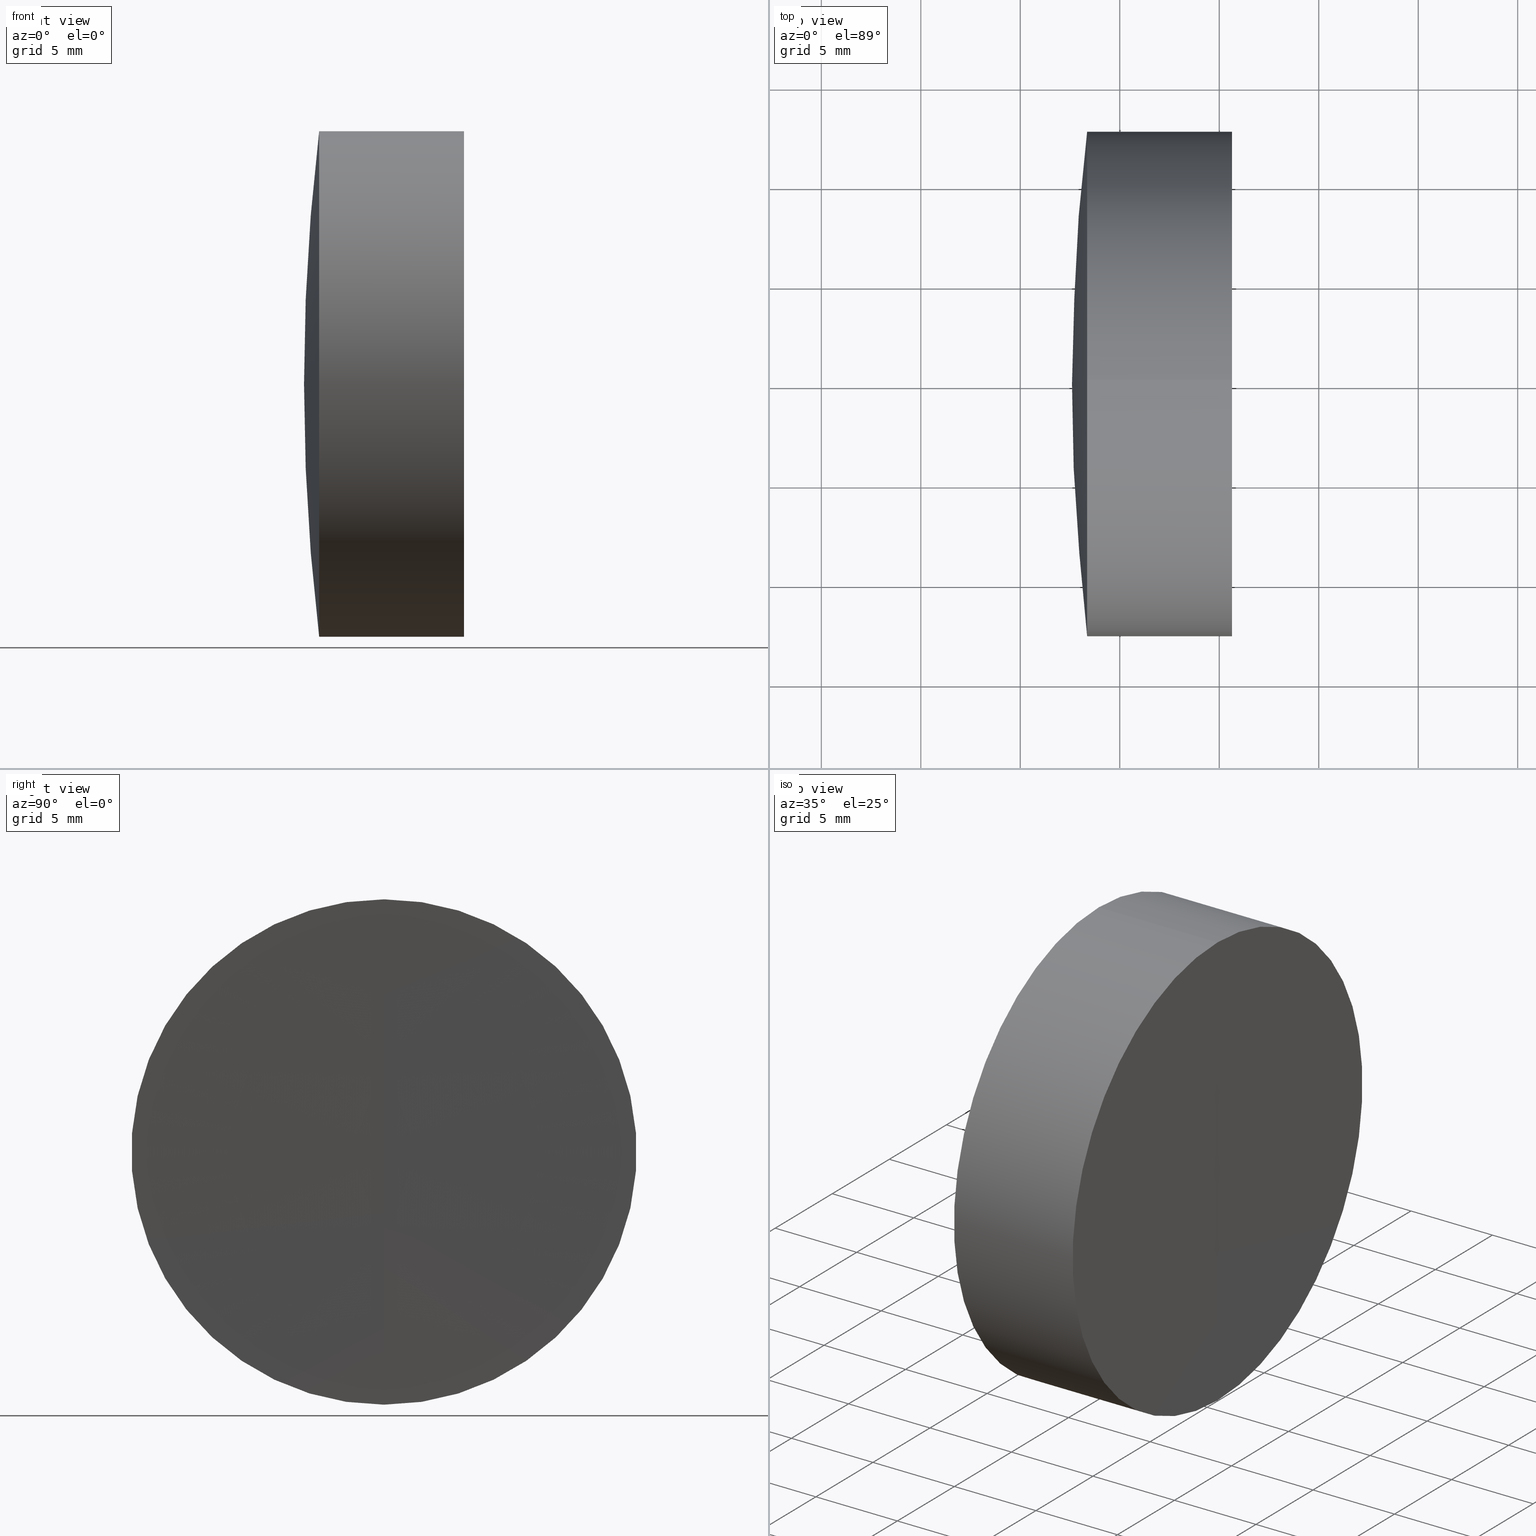
[diagram: canonical four-view strip — front | top / right | iso, engineering-drawing reading convention]
A machine part, canonical four-view strip (front | top / right | iso — engineering-drawing reading convention). The complete STEP part file that produces these views, byte-faithful:
ISO-10303-21;
HEADER;
FILE_DESCRIPTION (( 'STEP AP214' ),
    '1' );
FILE_NAME ('145125.STEP',
    '2019-06-03T06:31:22',
    ( 'user' ),
    ( '΢���й�' ),
    'SwSTEP 2.0',
    'SolidWorks 2016',
    '' );
FILE_SCHEMA (( 'AUTOMOTIVE_DESIGN' ));
ENDSEC;

DATA;
#1 = CARTESIAN_POINT ( 'NONE',  ( 345.7616526594428000, 0.0000000000000000000, 0.0000000000000000000 ) ) ;
#2 = CLOSED_SHELL ( 'NONE', ( #42, #245, #332, #142, #67, #196 ) ) ;
#3 = PRODUCT ( '145125', '145125', '', ( #164 ) ) ;
#4 = CARTESIAN_POINT ( 'NONE',  ( 449.0001259381126600, 0.0000000000000000000, 7.129305772232010000E-015 ) ) ;
#5 = CARTESIAN_POINT ( 'NONE',  ( 345.7616526594428000, 0.0000000000000000000, 12.70000000000007900 ) ) ;
#6 = MECHANICAL_DESIGN_GEOMETRIC_PRESENTATION_REPRESENTATION (  '', ( #310 ), #24 ) ;
#7 = DIRECTION ( 'NONE',  ( 0.0000000000000000000, 0.0000000000000000000, 1.000000000000000000 ) ) ;
#8 = DIRECTION ( 'NONE',  ( 1.000000000000000000, 0.0000000000000000000, 0.0000000000000000000 ) ) ;
#9 = DIRECTION ( 'NONE',  ( -1.000000000000000000, -0.0000000000000000000, -0.0000000000000000000 ) ) ;
#10 = APPLICATION_CONTEXT ( 'automotive_design' ) ;
#11 = CIRCLE ( 'NONE', #110, 96.60000000000003700 ) ;
#12 = CIRCLE ( 'NONE', #71, 96.60000000000005100 ) ;
#13 = FACE_OUTER_BOUND ( 'NONE', #242, .T. ) ;
#14 = CARTESIAN_POINT ( 'NONE',  ( 343.3607866747492500, 0.0000000000000000000, -12.69999999999999200 ) ) ;
#15 = ADVANCED_FACE ( 'NONE', ( #146 ), #250, .F. ) ;
#16 = FACE_OUTER_BOUND ( 'NONE', #181, .T. ) ;
#17 = ORIENTED_EDGE ( 'NONE', *, *, #216, .T. ) ;
#18 = AXIS2_PLACEMENT_3D ( 'NONE', #232, #346, #56 ) ;
#19 = ORIENTED_EDGE ( 'NONE', *, *, #273, .T. ) ;
#20 = AXIS2_PLACEMENT_3D ( 'NONE', #238, #35, #7 ) ;
#21 = CYLINDRICAL_SURFACE ( 'NONE', #147, 12.70000000000001700 ) ;
#22 = CIRCLE ( 'NONE', #224, 12.70000000000000600 ) ;
#23 = CIRCLE ( 'NONE', #318, 1999.999999999999100 ) ;
#24 =( GEOMETRIC_REPRESENTATION_CONTEXT ( 3 ) GLOBAL_UNCERTAINTY_ASSIGNED_CONTEXT ( ( #301 ) ) GLOBAL_UNIT_ASSIGNED_CONTEXT ( ( #260, #82, #234 ) ) REPRESENTATION_CONTEXT ( 'NONE', 'WORKASPACE' ) );
#25 = DIRECTION ( 'NONE',  ( -0.0000000000000000000, -1.000000000000000000, -0.0000000000000000000 ) ) ;
#26 = CARTESIAN_POINT ( 'NONE',  ( 250.0001259381127700, 0.0000000000000000000, 6.763720156497999700E-015 ) ) ;
#27 = FACE_OUTER_BOUND ( 'NONE', #33, .T. ) ;
#28 = VERTEX_POINT ( 'NONE', #240 ) ;
#29 = DIRECTION ( 'NONE',  ( 0.0000000000000000000, 0.0000000000000000000, 1.000000000000000000 ) ) ;
#30 =( NAMED_UNIT ( * ) SI_UNIT ( $, .STERADIAN. ) SOLID_ANGLE_UNIT ( ) );
#31 = DIRECTION ( 'NONE',  ( 0.0000000000000000000, 1.000000000000000000, 0.0000000000000000000 ) ) ;
#32 = AXIS2_PLACEMENT_3D ( 'NONE', #97, #254, #79 ) ;
#33 = EDGE_LOOP ( 'NONE', ( #266, #141, #127, #136 ) ) ;
#34 = DIRECTION ( 'NONE',  ( -1.000000000000000000, -0.0000000000000000000, -0.0000000000000000000 ) ) ;
#35 = DIRECTION ( 'NONE',  ( 0.0000000000000000000, 1.000000000000000000, 0.0000000000000000000 ) ) ;
#36 = CARTESIAN_POINT ( 'NONE',  ( 0.0000000000000000000, 0.0000000000000000000, 0.0000000000000000000 ) ) ;
#37 = DIRECTION ( 'NONE',  ( 0.0000000000000000000, 0.0000000000000000000, 1.000000000000000000 ) ) ;
#38 = AXIS2_PLACEMENT_3D ( 'NONE', #113, #217, #165 ) ;
#39 = DIRECTION ( 'NONE',  ( -1.000000000000000000, -0.0000000000000000000, -0.0000000000000000000 ) ) ;
#40 =( GEOMETRIC_REPRESENTATION_CONTEXT ( 3 ) GLOBAL_UNCERTAINTY_ASSIGNED_CONTEXT ( ( #261 ) ) GLOBAL_UNIT_ASSIGNED_CONTEXT ( ( #212, #59, #30 ) ) REPRESENTATION_CONTEXT ( 'NONE', 'WORKASPACE' ) );
#41 = CARTESIAN_POINT ( 'NONE',  ( 345.7616526594428000, 0.0000000000000000000, 12.70000000000000600 ) ) ;
#42 = ADVANCED_FACE ( 'NONE', ( #208 ), #58, .T. ) ;
#43 = CIRCLE ( 'NONE', #188, 12.70000000000003100 ) ;
#44 = COLOUR_RGB ( '',1.000000000000000000, 1.000000000000000000, 1.000000000000000000 ) ;
#45 = AXIS2_PLACEMENT_3D ( 'NONE', #1, #158, #317 ) ;
#46 = SPHERICAL_SURFACE ( 'NONE', #77, 96.60000000000003700 ) ;
#47 = COLOUR_RGB ( '',1.000000000000000000, 1.000000000000000000, 1.000000000000000000 ) ;
#48 = ORIENTED_EDGE ( 'NONE', *, *, #248, .T. ) ;
#49 = STYLED_ITEM ( 'NONE', ( #259 ), #300 ) ;
#50 = SURFACE_STYLE_USAGE ( .BOTH. , #329 ) ;
#51 = CARTESIAN_POINT ( 'NONE',  ( 124.5233095260452400, 1.555301434917139200E-015, -12.70000000000000600 ) ) ;
#52 = CARTESIAN_POINT ( 'NONE',  ( 342.6001259381126800, 0.0000000000000000000, 6.141848007680913600E-016 ) ) ;
#53 = DIRECTION ( 'NONE',  ( 0.0000000000000000000, -1.000000000000000000, 0.0000000000000000000 ) ) ;
#54 = VERTEX_POINT ( 'NONE', #111 ) ;
#55 = AXIS2_PLACEMENT_3D ( 'NONE', #85, #324, #137 ) ;
#56 = DIRECTION ( 'NONE',  ( 0.0000000000000000000, 0.0000000000000000000, 1.000000000000000000 ) ) ;
#57 = CARTESIAN_POINT ( 'NONE',  ( 350.6404488445973600, 0.0000000000000000000, 0.0000000000000000000 ) ) ;
#58 = SPHERICAL_SURFACE ( 'NONE', #55, 96.60000000000003700 ) ;
#59 =( NAMED_UNIT ( * ) PLANE_ANGLE_UNIT ( ) SI_UNIT ( $, .RADIAN. ) );
#60 = CYLINDRICAL_SURFACE ( 'NONE', #86, 12.70000000000000600 ) ;
#61 = AXIS2_PLACEMENT_3D ( 'NONE', #57, #209, #29 ) ;
#62 = CARTESIAN_POINT ( 'NONE',  ( 250.0001259381127700, 0.0000000000000000000, 6.763720156497999700E-015 ) ) ;
#63 = ORIENTED_EDGE ( 'NONE', *, *, #292, .F. ) ;
#64 =( NAMED_UNIT ( * ) SI_UNIT ( $, .STERADIAN. ) SOLID_ANGLE_UNIT ( ) );
#65 = FILL_AREA_STYLE_COLOUR ( '', #47 ) ;
#66 = CARTESIAN_POINT ( 'NONE',  ( 124.5233095260452400, 0.0000000000000000000, 12.70000000000000600 ) ) ;
#67 = ADVANCED_FACE ( 'NONE', ( #13 ), #60, .T. ) ;
#68 = FACE_OUTER_BOUND ( 'NONE', #102, .T. ) ;
#69 = ORIENTED_EDGE ( 'NONE', *, *, #267, .F. ) ;
#70 = FACE_OUTER_BOUND ( 'NONE', #226, .T. ) ;
#71 = AXIS2_PLACEMENT_3D ( 'NONE', #311, #124, #283 ) ;
#72 = AXIS2_PLACEMENT_3D ( 'NONE', #321, #135, #294 ) ;
#73 = STYLED_ITEM ( 'NONE', ( #289 ), #203 ) ;
#74 = VERTEX_POINT ( 'NONE', #215 ) ;
#75 = PRESENTATION_STYLE_ASSIGNMENT (( #105 ) ) ;
#76 = ORIENTED_EDGE ( 'NONE', *, *, #326, .F. ) ;
#77 = AXIS2_PLACEMENT_3D ( 'NONE', #186, #31, #132 ) ;
#78 = CARTESIAN_POINT ( 'NONE',  ( 449.0001259381126600, 0.0000000000000000000, 7.129305772232010000E-015 ) ) ;
#79 = DIRECTION ( 'NONE',  ( 0.0000000000000000000, 0.0000000000000000000, 1.000000000000000000 ) ) ;
#80 = DIRECTION ( 'NONE',  ( -0.0000000000000000000, 1.000000000000000000, 1.224646799147353200E-016 ) ) ;
#81 = ORIENTED_EDGE ( 'NONE', *, *, #308, .T. ) ;
#82 =( NAMED_UNIT ( * ) PLANE_ANGLE_UNIT ( ) SI_UNIT ( $, .RADIAN. ) );
#83 = UNCERTAINTY_MEASURE_WITH_UNIT (LENGTH_MEASURE( 1.000000000000000100E-005 ), #253, 'distance_accuracy_value', 'NONE');
#84 = AXIS2_PLACEMENT_3D ( 'NONE', #126, #128, #284 ) ;
#85 = CARTESIAN_POINT ( 'NONE',  ( 250.0001259381127700, 0.0000000000000000000, 6.763720156497999700E-015 ) ) ;
#86 = AXIS2_PLACEMENT_3D ( 'NONE', #265, #9, #37 ) ;
#87 = DIRECTION ( 'NONE',  ( -1.000000000000000000, -0.0000000000000000000, -0.0000000000000000000 ) ) ;
#88 = CIRCLE ( 'NONE', #125, 12.70000000000000300 ) ;
#89 = PRESENTATION_LAYER_ASSIGNMENT (  '', '', ( #73 ) ) ;
#90 =( NAMED_UNIT ( * ) PLANE_ANGLE_UNIT ( ) SI_UNIT ( $, .RADIAN. ) );
#91 = ADVANCED_FACE ( 'NONE', ( #304 ), #100, .F. ) ;
#92 = PRODUCT_DEFINITION_CONTEXT ( 'detailed design', #323, 'design' ) ;
#93 = AXIS2_PLACEMENT_3D ( 'NONE', #156, #316, #130 ) ;
#94 = ORIENTED_EDGE ( 'NONE', *, *, #249, .T. ) ;
#95 = PRESENTATION_LAYER_ASSIGNMENT (  '', '', ( #49 ) ) ;
#96 = DIRECTION ( 'NONE',  ( -1.000000000000000000, -0.0000000000000000000, -0.0000000000000000000 ) ) ;
#97 = CARTESIAN_POINT ( 'NONE',  ( 345.7616526594428000, 0.0000000000000000000, 0.0000000000000000000 ) ) ;
#98 = CARTESIAN_POINT ( 'NONE',  ( 345.7616526594428000, 1.555301434917148100E-015, -12.70000000000007200 ) ) ;
#99 = CYLINDRICAL_SURFACE ( 'NONE', #18, 12.70000000000000600 ) ;
#100 = SPHERICAL_SURFACE ( 'NONE', #20, 96.60000000000005100 ) ;
#101 = AXIS2_PLACEMENT_3D ( 'NONE', #62, #190, #109 ) ;
#102 = EDGE_LOOP ( 'NONE', ( #63, #325, #17, #342 ) ) ;
#103 = DIRECTION ( 'NONE',  ( 0.0000000000000000000, 0.0000000000000000000, 1.000000000000000000 ) ) ;
#104 = MECHANICAL_DESIGN_GEOMETRIC_PRESENTATION_REPRESENTATION (  '', ( #73 ), #120 ) ;
#105 = SURFACE_STYLE_USAGE ( .BOTH. , #293 ) ;
#106 = EDGE_LOOP ( 'NONE', ( #327, #157, #173, #76 ) ) ;
#107 = DIRECTION ( 'NONE',  ( -0.0000000000000000000, -1.000000000000000000, -0.0000000000000000000 ) ) ;
#108 = SPHERICAL_SURFACE ( 'NONE', #295, 1999.999999999999100 ) ;
#109 = DIRECTION ( 'NONE',  ( 0.0000000000000000000, 0.0000000000000000000, 1.000000000000000000 ) ) ;
#110 = AXIS2_PLACEMENT_3D ( 'NONE', #256, #80, #231 ) ;
#111 = CARTESIAN_POINT ( 'NONE',  ( 346.6001259381128500, 0.0000000000000000000, 1.267876419637971800E-014 ) ) ;
#112 = VERTEX_POINT ( 'NONE', #322 ) ;
#113 = CARTESIAN_POINT ( 'NONE',  ( 2350.600125938112300, 0.0000000000000000000, 0.0000000000000000000 ) ) ;
#114 = ORIENTED_EDGE ( 'NONE', *, *, #185, .T. ) ;
#115 = FILL_AREA_STYLE ('',( #65 ) ) ;
#116 = ADVANCED_FACE ( 'NONE', ( #16 ), #262, .F. ) ;
#117 = ORIENTED_EDGE ( 'NONE', *, *, #326, .T. ) ;
#118 = MECHANICAL_DESIGN_GEOMETRIC_PRESENTATION_REPRESENTATION (  '', ( #49 ), #134 ) ;
#119 = ORIENTED_EDGE ( 'NONE', *, *, #185, .F. ) ;
#120 =( GEOMETRIC_REPRESENTATION_CONTEXT ( 3 ) GLOBAL_UNCERTAINTY_ASSIGNED_CONTEXT ( ( #83 ) ) GLOBAL_UNIT_ASSIGNED_CONTEXT ( ( #253, #239, #64 ) ) REPRESENTATION_CONTEXT ( 'NONE', 'WORKASPACE' ) );
#121 = LINE ( 'NONE', #51, #148 ) ;
#122 = ORIENTED_EDGE ( 'NONE', *, *, #172, .T. ) ;
#123 = APPLICATION_PROTOCOL_DEFINITION ( 'draft international standard', 'automotive_design', 1998, #10 ) ;
#124 = DIRECTION ( 'NONE',  ( -0.0000000000000000000, 1.000000000000000000, 1.224646799147353200E-016 ) ) ;
#125 = AXIS2_PLACEMENT_3D ( 'NONE', #155, #315, #129 ) ;
#126 = CARTESIAN_POINT ( 'NONE',  ( -0.5519199926577972300, 0.0000000000000000000, 0.0000000000000000000 ) ) ;
#127 = ORIENTED_EDGE ( 'NONE', *, *, #333, .F. ) ;
#128 = DIRECTION ( 'NONE',  ( -1.000000000000000000, -0.0000000000000000000, -0.0000000000000000000 ) ) ;
#129 = DIRECTION ( 'NONE',  ( 0.0000000000000000000, 0.0000000000000000000, 1.000000000000000000 ) ) ;
#130 = DIRECTION ( 'NONE',  ( 0.0000000000000000000, 1.224646799147353200E-016, -1.000000000000000000 ) ) ;
#131 = VECTOR ( 'NONE', #184, 1000.000000000000000 ) ;
#132 = DIRECTION ( 'NONE',  ( 0.0000000000000000000, 0.0000000000000000000, 1.000000000000000000 ) ) ;
#133 = FILL_AREA_STYLE ('',( #213 ) ) ;
#134 =( GEOMETRIC_REPRESENTATION_CONTEXT ( 3 ) GLOBAL_UNCERTAINTY_ASSIGNED_CONTEXT ( ( #144 ) ) GLOBAL_UNIT_ASSIGNED_CONTEXT ( ( #272, #90, #244 ) ) REPRESENTATION_CONTEXT ( 'NONE', 'WORKASPACE' ) );
#135 = DIRECTION ( 'NONE',  ( 0.0000000000000000000, -1.000000000000000000, -1.224646799147353200E-016 ) ) ;
#136 = ORIENTED_EDGE ( 'NONE', *, *, #216, .F. ) ;
#137 = DIRECTION ( 'NONE',  ( 0.0000000000000000000, 0.0000000000000000000, 1.000000000000000000 ) ) ;
#138 = DIRECTION ( 'NONE',  ( -1.000000000000000000, -0.0000000000000000000, -0.0000000000000000000 ) ) ;
#139 = SURFACE_SIDE_STYLE ('',( #225 ) ) ;
#140 = CIRCLE ( 'NONE', #339, 96.60000000000003700 ) ;
#141 = ORIENTED_EDGE ( 'NONE', *, *, #292, .T. ) ;
#142 = ADVANCED_FACE ( 'NONE', ( #70 ), #281, .T. ) ;
#143 = EDGE_LOOP ( 'NONE', ( #271, #309, #282 ) ) ;
#144 = UNCERTAINTY_MEASURE_WITH_UNIT (LENGTH_MEASURE( 1.000000000000000100E-005 ), #272, 'distance_accuracy_value', 'NONE');
#145 = FACE_OUTER_BOUND ( 'NONE', #152, .T. ) ;
#146 = FACE_OUTER_BOUND ( 'NONE', #255, .T. ) ;
#147 = AXIS2_PLACEMENT_3D ( 'NONE', #290, #288, #103 ) ;
#148 = VECTOR ( 'NONE', #96, 1000.000000000000000 ) ;
#149 = EDGE_CURVE ( 'NONE', #74, #347, #197, .T. ) ;
#150 = VERTEX_POINT ( 'NONE', #5 ) ;
#151 = AXIS2_PLACEMENT_3D ( 'NONE', #170, #331, #243 ) ;
#152 = EDGE_LOOP ( 'NONE', ( #222, #199, #200 ) ) ;
#153 = CARTESIAN_POINT ( 'NONE',  ( 345.7616526594428000, 1.555301434917139200E-015, -12.70000000000000600 ) ) ;
#154 = DIRECTION ( 'NONE',  ( 0.0000000000000000000, 1.000000000000000000, -0.0000000000000000000 ) ) ;
#155 = CARTESIAN_POINT ( 'NONE',  ( 350.6404488445973600, 0.0000000000000000000, 0.0000000000000000000 ) ) ;
#156 = CARTESIAN_POINT ( 'NONE',  ( 2350.600125938112300, 0.0000000000000000000, 0.0000000000000000000 ) ) ;
#157 = ORIENTED_EDGE ( 'NONE', *, *, #285, .T. ) ;
#158 = DIRECTION ( 'NONE',  ( -1.000000000000000000, -0.0000000000000000000, -0.0000000000000000000 ) ) ;
#159 = DIRECTION ( 'NONE',  ( 0.0000000000000000000, 1.000000000000000000, -0.0000000000000000000 ) ) ;
#160 = ORIENTED_EDGE ( 'NONE', *, *, #198, .F. ) ;
#161 = CARTESIAN_POINT ( 'NONE',  ( 2350.600125938112300, 0.0000000000000000000, 0.0000000000000000000 ) ) ;
#162 = DIRECTION ( 'NONE',  ( 0.0000000000000000000, 0.0000000000000000000, -1.000000000000000000 ) ) ;
#163 = AXIS2_PLACEMENT_3D ( 'NONE', #26, #183, #345 ) ;
#164 = PRODUCT_CONTEXT ( 'NONE', #10, 'mechanical' ) ;
#165 = DIRECTION ( 'NONE',  ( 0.0000000000000000000, 0.0000000000000000000, -1.000000000000000000 ) ) ;
#166 = FILL_AREA_STYLE_COLOUR ( '', #296 ) ;
#167 = EDGE_LOOP ( 'NONE', ( #211, #48, #119 ) ) ;
#168 = FILL_AREA_STYLE ('',( #166 ) ) ;
#169 = DIRECTION ( 'NONE',  ( 0.0000000000000000000, 0.0000000000000000000, 1.000000000000000000 ) ) ;
#170 = CARTESIAN_POINT ( 'NONE',  ( 343.3607866747492500, 0.0000000000000000000, 0.0000000000000000000 ) ) ;
#171 = ADVANCED_FACE ( 'NONE', ( #274 ), #108, .F. ) ;
#172 = EDGE_CURVE ( 'NONE', #319, #347, #340, .T. ) ;
#173 = ORIENTED_EDGE ( 'NONE', *, *, #305, .F. ) ;
#174 = AXIS2_PLACEMENT_3D ( 'NONE', #219, #330, #169 ) ;
#175 = ORIENTED_EDGE ( 'NONE', *, *, #285, .F. ) ;
#176 = AXIS2_PLACEMENT_3D ( 'NONE', #36, #192, #8 ) ;
#177 = SPHERICAL_SURFACE ( 'NONE', #204, 106.3999999999999900 ) ;
#178 = MANIFOLD_SOLID_BREP ( '��ת3', #336 ) ;
#179 = FACE_OUTER_BOUND ( 'NONE', #167, .T. ) ;
#180 = DIRECTION ( 'NONE',  ( 0.0000000000000000000, 0.0000000000000000000, -1.000000000000000000 ) ) ;
#181 = EDGE_LOOP ( 'NONE', ( #335, #19, #81 ) ) ;
#182 = ORIENTED_EDGE ( 'NONE', *, *, #221, .F. ) ;
#183 = DIRECTION ( 'NONE',  ( 0.0000000000000000000, -1.000000000000000000, 0.0000000000000000000 ) ) ;
#184 = DIRECTION ( 'NONE',  ( -1.000000000000000000, -0.0000000000000000000, -0.0000000000000000000 ) ) ;
#185 = EDGE_CURVE ( 'NONE', #291, #314, #313, .T. ) ;
#186 = CARTESIAN_POINT ( 'NONE',  ( 250.0001259381127700, 0.0000000000000000000, 6.763720156497999700E-015 ) ) ;
#187 = ORIENTED_EDGE ( 'NONE', *, *, #201, .T. ) ;
#188 = AXIS2_PLACEMENT_3D ( 'NONE', #218, #39, #193 ) ;
#189 = PRODUCT_DEFINITION_SHAPE ( 'NONE', 'NONE',  #195 ) ;
#190 = DIRECTION ( 'NONE',  ( 0.0000000000000000000, 1.000000000000000000, 0.0000000000000000000 ) ) ;
#191 = ORIENTED_EDGE ( 'NONE', *, *, #344, .F. ) ;
#192 = DIRECTION ( 'NONE',  ( 0.0000000000000000000, 0.0000000000000000000, 1.000000000000000000 ) ) ;
#193 = DIRECTION ( 'NONE',  ( 0.0000000000000000000, 0.0000000000000000000, 1.000000000000000000 ) ) ;
#194 = CARTESIAN_POINT ( 'NONE',  ( 350.6404488445973600, 0.0000000000000000000, 12.70000000000000300 ) ) ;
#195 = PRODUCT_DEFINITION ( 'δ֪', '', #210, #92 ) ;
#196 = ADVANCED_FACE ( 'NONE', ( #179 ), #46, .T. ) ;
#197 = CIRCLE ( 'NONE', #72, 106.3999999999999900 ) ;
#198 = EDGE_CURVE ( 'NONE', #241, #307, #247, .T. ) ;
#199 = ORIENTED_EDGE ( 'NONE', *, *, #149, .T. ) ;
#200 = ORIENTED_EDGE ( 'NONE', *, *, #172, .F. ) ;
#201 = EDGE_CURVE ( 'NONE', #307, #112, #207, .T. ) ;
#202 = SURFACE_STYLE_FILL_AREA ( #133 ) ;
#203 = ADVANCED_BREP_SHAPE_REPRESENTATION ( '145125', ( #300, #178, #176 ), #40 ) ;
#204 = AXIS2_PLACEMENT_3D ( 'NONE', #78, #25, #180 ) ;
#205 = EDGE_LOOP ( 'NONE', ( #280, #303, #69 ) ) ;
#206 = DIRECTION ( 'NONE',  ( 0.0000000000000000000, 0.0000000000000000000, -1.000000000000000000 ) ) ;
#207 = CIRCLE ( 'NONE', #93, 1999.999999999999100 ) ;
#208 = FACE_OUTER_BOUND ( 'NONE', #205, .T. ) ;
#209 = DIRECTION ( 'NONE',  ( -1.000000000000000000, -0.0000000000000000000, -0.0000000000000000000 ) ) ;
#210 = PRODUCT_DEFINITION_FORMATION_WITH_SPECIFIED_SOURCE ( '�κ�', '', #3, .NOT_KNOWN. ) ;
#211 = ORIENTED_EDGE ( 'NONE', *, *, #229, .F. ) ;
#212 =( LENGTH_UNIT ( ) NAMED_UNIT ( * ) SI_UNIT ( .MILLI., .METRE. ) );
#213 = FILL_AREA_STYLE_COLOUR ( '', #44 ) ;
#214 = ORIENTED_EDGE ( 'NONE', *, *, #249, .F. ) ;
#215 = CARTESIAN_POINT ( 'NONE',  ( 343.3607866747492500, -1.555301434917137800E-015, 12.69999999999999900 ) ) ;
#216 = EDGE_CURVE ( 'NONE', #307, #150, #337, .T. ) ;
#217 = DIRECTION ( 'NONE',  ( -0.0000000000000000000, -1.000000000000000000, -0.0000000000000000000 ) ) ;
#218 = CARTESIAN_POINT ( 'NONE',  ( 345.7616526594428000, 0.0000000000000000000, 0.0000000000000000000 ) ) ;
#219 = CARTESIAN_POINT ( 'NONE',  ( 345.7616526594428000, 0.0000000000000000000, 0.0000000000000000000 ) ) ;
#220 = ADVANCED_FACE ( 'NONE', ( #68 ), #21, .T. ) ;
#221 = EDGE_CURVE ( 'NONE', #307, #241, #88, .T. ) ;
#222 = ORIENTED_EDGE ( 'NONE', *, *, #344, .T. ) ;
#223 = CIRCLE ( 'NONE', #151, 12.70000000000000600 ) ;
#224 = AXIS2_PLACEMENT_3D ( 'NONE', #328, #138, #298 ) ;
#225 = SURFACE_STYLE_FILL_AREA ( #115 ) ;
#226 = EDGE_LOOP ( 'NONE', ( #338, #278, #122 ) ) ;
#227 = PRODUCT_RELATED_PRODUCT_CATEGORY ( 'part', '', ( #3 ) ) ;
#228 = EDGE_LOOP ( 'NONE', ( #236, #160, #94 ) ) ;
#229 = EDGE_CURVE ( 'NONE', #28, #291, #11, .T. ) ;
#230 = CARTESIAN_POINT ( 'NONE',  ( 250.0001259381127700, 0.0000000000000000000, 6.763720156497999700E-015 ) ) ;
#231 = DIRECTION ( 'NONE',  ( 0.0000000000000000000, -1.224646799147353200E-016, 1.000000000000000000 ) ) ;
#232 = CARTESIAN_POINT ( 'NONE',  ( 124.5233095260452400, 0.0000000000000000000, 0.0000000000000000000 ) ) ;
#233 = EDGE_CURVE ( 'NONE', #54, #150, #269, .T. ) ;
#234 =( NAMED_UNIT ( * ) SI_UNIT ( $, .STERADIAN. ) SOLID_ANGLE_UNIT ( ) );
#235 = VECTOR ( 'NONE', #34, 1000.000000000000000 ) ;
#236 = ORIENTED_EDGE ( 'NONE', *, *, #201, .F. ) ;
#237 = CARTESIAN_POINT ( 'NONE',  ( 449.0001259381126600, 0.0000000000000000000, 7.129305772232010000E-015 ) ) ;
#238 = CARTESIAN_POINT ( 'NONE',  ( 250.0001259381127700, 0.0000000000000000000, 6.763720156497999700E-015 ) ) ;
#239 =( NAMED_UNIT ( * ) PLANE_ANGLE_UNIT ( ) SI_UNIT ( $, .RADIAN. ) );
#240 = CARTESIAN_POINT ( 'NONE',  ( 346.6001259381128000, 0.0000000000000000000, 1.267876419637971800E-014 ) ) ;
#241 = VERTEX_POINT ( 'NONE', #286 ) ;
#242 = EDGE_LOOP ( 'NONE', ( #175, #114, #117, #191 ) ) ;
#243 = DIRECTION ( 'NONE',  ( 0.0000000000000000000, 0.0000000000000000000, 1.000000000000000000 ) ) ;
#244 =( NAMED_UNIT ( * ) SI_UNIT ( $, .STERADIAN. ) SOLID_ANGLE_UNIT ( ) );
#245 = ADVANCED_FACE ( 'NONE', ( #287 ), #99, .T. ) ;
#246 = VECTOR ( 'NONE', #87, 1000.000000000000000 ) ;
#247 = CIRCLE ( 'NONE', #61, 12.70000000000000300 ) ;
#248 = EDGE_CURVE ( 'NONE', #28, #314, #140, .T. ) ;
#249 = EDGE_CURVE ( 'NONE', #241, #112, #23, .T. ) ;
#250 = SPHERICAL_SURFACE ( 'NONE', #38, 1999.999999999999100 ) ;
#251 = CIRCLE ( 'NONE', #174, 12.70000000000003100 ) ;
#252 = AXIS2_PLACEMENT_3D ( 'NONE', #237, #264, #162 ) ;
#253 =( LENGTH_UNIT ( ) NAMED_UNIT ( * ) SI_UNIT ( .MILLI., .METRE. ) );
#254 = DIRECTION ( 'NONE',  ( -1.000000000000000000, -0.0000000000000000000, -0.0000000000000000000 ) ) ;
#255 = EDGE_LOOP ( 'NONE', ( #182, #187, #214 ) ) ;
#256 = CARTESIAN_POINT ( 'NONE',  ( 250.0001259381127700, 0.0000000000000000000, 6.763720156497999700E-015 ) ) ;
#257 = CARTESIAN_POINT ( 'NONE',  ( -0.5519199926577972300, 0.0000000000000000000, 12.70000000000001700 ) ) ;
#258 = SURFACE_STYLE_FILL_AREA ( #168 ) ;
#259 = PRESENTATION_STYLE_ASSIGNMENT (( #299 ) ) ;
#260 =( LENGTH_UNIT ( ) NAMED_UNIT ( * ) SI_UNIT ( .MILLI., .METRE. ) );
#261 = UNCERTAINTY_MEASURE_WITH_UNIT (LENGTH_MEASURE( 1.000000000000000100E-005 ), #212, 'distance_accuracy_value', 'NONE');
#262 = SPHERICAL_SURFACE ( 'NONE', #101, 96.60000000000005100 ) ;
#263 = DIRECTION ( 'NONE',  ( 0.0000000000000000000, 0.0000000000000000000, -1.000000000000000000 ) ) ;
#264 = DIRECTION ( 'NONE',  ( -0.0000000000000000000, -1.000000000000000000, -0.0000000000000000000 ) ) ;
#265 = CARTESIAN_POINT ( 'NONE',  ( 124.5233095260452400, 0.0000000000000000000, 0.0000000000000000000 ) ) ;
#266 = ORIENTED_EDGE ( 'NONE', *, *, #221, .T. ) ;
#267 = EDGE_CURVE ( 'NONE', #314, #291, #279, .T. ) ;
#268 = CARTESIAN_POINT ( 'NONE',  ( -0.5519199926577972300, 1.555301434917140600E-015, -12.70000000000001700 ) ) ;
#269 = CIRCLE ( 'NONE', #163, 96.60000000000005100 ) ;
#270 = ADVANCED_FACE ( 'NONE', ( #27 ), #302, .T. ) ;
#271 = ORIENTED_EDGE ( 'NONE', *, *, #273, .F. ) ;
#272 =( LENGTH_UNIT ( ) NAMED_UNIT ( * ) SI_UNIT ( .MILLI., .METRE. ) );
#273 = EDGE_CURVE ( 'NONE', #54, #275, #12, .T. ) ;
#274 = FACE_OUTER_BOUND ( 'NONE', #228, .T. ) ;
#275 = VERTEX_POINT ( 'NONE', #98 ) ;
#276 = AXIS2_PLACEMENT_3D ( 'NONE', #4, #159, #320 ) ;
#277 = LINE ( 'NONE', #66, #235 ) ;
#278 = ORIENTED_EDGE ( 'NONE', *, *, #305, .T. ) ;
#279 = CIRCLE ( 'NONE', #32, 12.70000000000000600 ) ;
#280 = ORIENTED_EDGE ( 'NONE', *, *, #248, .F. ) ;
#281 = SPHERICAL_SURFACE ( 'NONE', #252, 106.3999999999999900 ) ;
#282 = ORIENTED_EDGE ( 'NONE', *, *, #333, .T. ) ;
#283 = DIRECTION ( 'NONE',  ( 0.0000000000000000000, -1.224646799147353200E-016, 1.000000000000000000 ) ) ;
#284 = DIRECTION ( 'NONE',  ( 0.0000000000000000000, 0.0000000000000000000, 1.000000000000000000 ) ) ;
#285 = EDGE_CURVE ( 'NONE', #291, #319, #121, .T. ) ;
#286 = CARTESIAN_POINT ( 'NONE',  ( 350.6404488445973600, 1.555301434917139800E-015, -12.70000000000000300 ) ) ;
#287 = FACE_OUTER_BOUND ( 'NONE', #106, .T. ) ;
#288 = DIRECTION ( 'NONE',  ( -1.000000000000000000, -0.0000000000000000000, -0.0000000000000000000 ) ) ;
#289 = PRESENTATION_STYLE_ASSIGNMENT (( #50 ) ) ;
#290 = CARTESIAN_POINT ( 'NONE',  ( -0.5519199926577972300, 0.0000000000000000000, 0.0000000000000000000 ) ) ;
#291 = VERTEX_POINT ( 'NONE', #153 ) ;
#292 = EDGE_CURVE ( 'NONE', #241, #275, #306, .T. ) ;
#293 = SURFACE_SIDE_STYLE ('',( #202 ) ) ;
#294 = DIRECTION ( 'NONE',  ( 0.0000000000000000000, 1.224646799147353200E-016, -1.000000000000000000 ) ) ;
#295 = AXIS2_PLACEMENT_3D ( 'NONE', #161, #107, #263 ) ;
#296 = COLOUR_RGB ( '',1.000000000000000000, 1.000000000000000000, 1.000000000000000000 ) ;
#297 = APPLICATION_PROTOCOL_DEFINITION ( 'draft international standard', 'automotive_design', 1998, #323 ) ;
#298 = DIRECTION ( 'NONE',  ( 0.0000000000000000000, 0.0000000000000000000, 1.000000000000000000 ) ) ;
#299 = SURFACE_STYLE_USAGE ( .BOTH. , #139 ) ;
#300 = MANIFOLD_SOLID_BREP ( '��ת1', #2 ) ;
#301 = UNCERTAINTY_MEASURE_WITH_UNIT (LENGTH_MEASURE( 1.000000000000000100E-005 ), #260, 'distance_accuracy_value', 'NONE');
#302 = CYLINDRICAL_SURFACE ( 'NONE', #84, 12.70000000000001700 ) ;
#303 = ORIENTED_EDGE ( 'NONE', *, *, #229, .T. ) ;
#304 = FACE_OUTER_BOUND ( 'NONE', #143, .T. ) ;
#305 = EDGE_CURVE ( 'NONE', #74, #319, #223, .T. ) ;
#306 = LINE ( 'NONE', #268, #246 ) ;
#307 = VERTEX_POINT ( 'NONE', #194 ) ;
#308 = EDGE_CURVE ( 'NONE', #275, #150, #251, .T. ) ;
#309 = ORIENTED_EDGE ( 'NONE', *, *, #233, .T. ) ;
#310 = STYLED_ITEM ( 'NONE', ( #75 ), #178 ) ;
#311 = CARTESIAN_POINT ( 'NONE',  ( 250.0001259381127700, 0.0000000000000000000, 6.763720156497999700E-015 ) ) ;
#312 = DIRECTION ( 'NONE',  ( 0.0000000000000000000, 0.0000000000000000000, 1.000000000000000000 ) ) ;
#313 = CIRCLE ( 'NONE', #45, 12.70000000000000600 ) ;
#314 = VERTEX_POINT ( 'NONE', #41 ) ;
#315 = DIRECTION ( 'NONE',  ( -1.000000000000000000, -0.0000000000000000000, -0.0000000000000000000 ) ) ;
#316 = DIRECTION ( 'NONE',  ( 0.0000000000000000000, -1.000000000000000000, -1.224646799147353200E-016 ) ) ;
#317 = DIRECTION ( 'NONE',  ( 0.0000000000000000000, 0.0000000000000000000, 1.000000000000000000 ) ) ;
#318 = AXIS2_PLACEMENT_3D ( 'NONE', #343, #154, #312 ) ;
#319 = VERTEX_POINT ( 'NONE', #14 ) ;
#320 = DIRECTION ( 'NONE',  ( 0.0000000000000000000, 0.0000000000000000000, 1.000000000000000000 ) ) ;
#321 = CARTESIAN_POINT ( 'NONE',  ( 449.0001259381126600, 0.0000000000000000000, 7.129305772232010000E-015 ) ) ;
#322 = CARTESIAN_POINT ( 'NONE',  ( 350.6001259381133100, 0.0000000000000000000, -1.224646799147352700E-013 ) ) ;
#323 = APPLICATION_CONTEXT ( 'automotive_design' ) ;
#324 = DIRECTION ( 'NONE',  ( 0.0000000000000000000, 1.000000000000000000, 0.0000000000000000000 ) ) ;
#325 = ORIENTED_EDGE ( 'NONE', *, *, #198, .T. ) ;
#326 = EDGE_CURVE ( 'NONE', #314, #74, #277, .T. ) ;
#327 = ORIENTED_EDGE ( 'NONE', *, *, #267, .T. ) ;
#328 = CARTESIAN_POINT ( 'NONE',  ( 343.3607866747492500, 0.0000000000000000000, 0.0000000000000000000 ) ) ;
#329 = SURFACE_SIDE_STYLE ('',( #258 ) ) ;
#330 = DIRECTION ( 'NONE',  ( -1.000000000000000000, -0.0000000000000000000, -0.0000000000000000000 ) ) ;
#331 = DIRECTION ( 'NONE',  ( -1.000000000000000000, -0.0000000000000000000, -0.0000000000000000000 ) ) ;
#332 = ADVANCED_FACE ( 'NONE', ( #145 ), #177, .T. ) ;
#333 = EDGE_CURVE ( 'NONE', #150, #275, #43, .T. ) ;
#334 = PRESENTATION_LAYER_ASSIGNMENT (  '', '', ( #310 ) ) ;
#335 = ORIENTED_EDGE ( 'NONE', *, *, #233, .F. ) ;
#336 = CLOSED_SHELL ( 'NONE', ( #15, #270, #116, #91, #220, #171 ) ) ;
#337 = LINE ( 'NONE', #257, #131 ) ;
#338 = ORIENTED_EDGE ( 'NONE', *, *, #149, .F. ) ;
#339 = AXIS2_PLACEMENT_3D ( 'NONE', #230, #53, #206 ) ;
#340 = CIRCLE ( 'NONE', #276, 106.3999999999999900 ) ;
#341 = SHAPE_DEFINITION_REPRESENTATION ( #189, #203 ) ;
#342 = ORIENTED_EDGE ( 'NONE', *, *, #308, .F. ) ;
#343 = CARTESIAN_POINT ( 'NONE',  ( 2350.600125938112300, 0.0000000000000000000, 0.0000000000000000000 ) ) ;
#344 = EDGE_CURVE ( 'NONE', #319, #74, #22, .T. ) ;
#345 = DIRECTION ( 'NONE',  ( 0.0000000000000000000, 0.0000000000000000000, -1.000000000000000000 ) ) ;
#346 = DIRECTION ( 'NONE',  ( -1.000000000000000000, -0.0000000000000000000, -0.0000000000000000000 ) ) ;
#347 = VERTEX_POINT ( 'NONE', #52 ) ;
ENDSEC;
END-ISO-10303-21;
